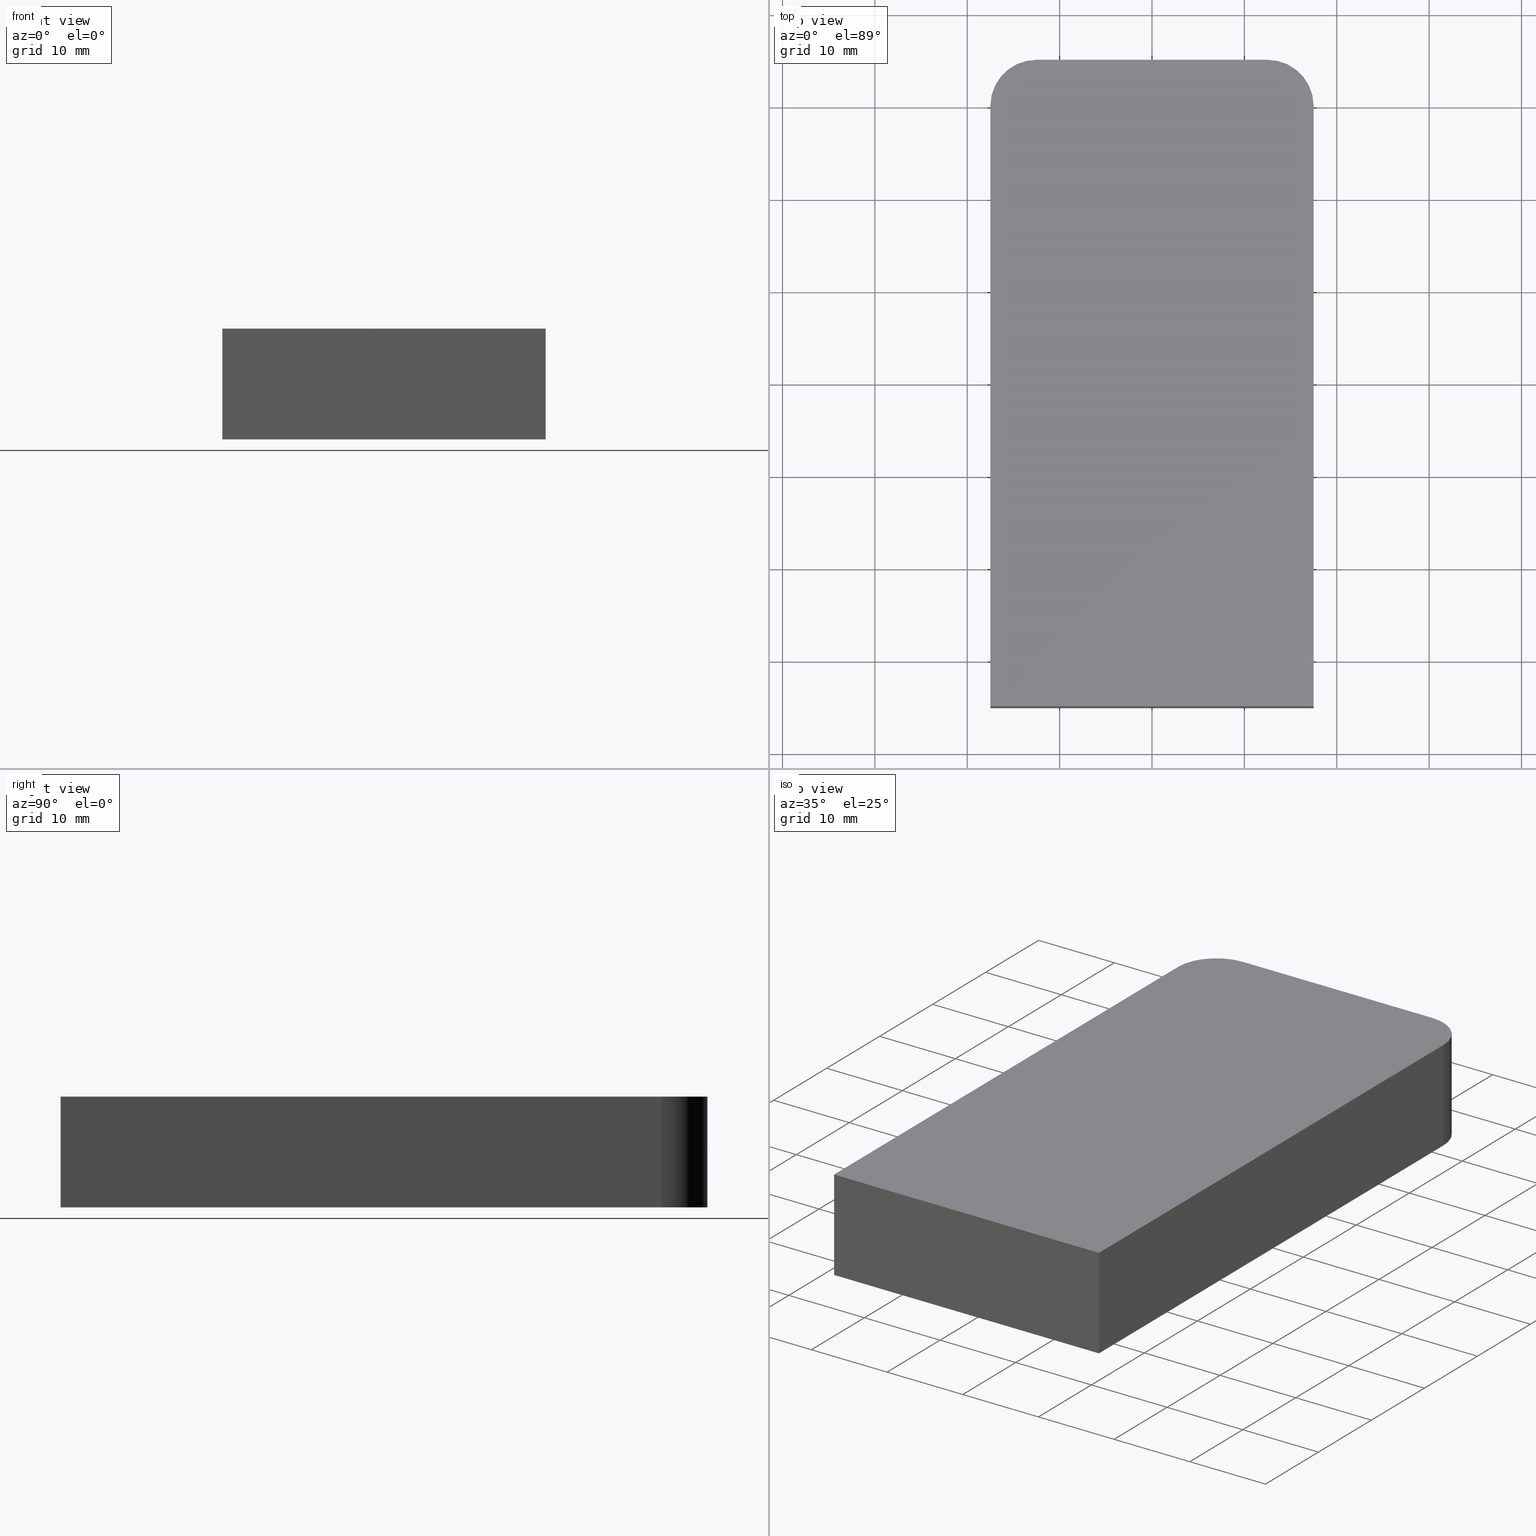
[diagram: canonical four-view strip — front | top / right | iso, engineering-drawing reading convention]
A machine part, canonical four-view strip (front | top / right | iso — engineering-drawing reading convention). The complete STEP part file that produces these views, byte-faithful:
ISO-10303-21;
HEADER;
/* Generated by software containing ST-Developer
 * from STEP Tools, Inc. (www.steptools.com) 
 */

FILE_DESCRIPTION(
/* description */ (''),
/* implementation_level */ '2;1');

FILE_NAME(
/* name */ 
'H:\\Eigene Dateien\\CAD Workspace Vault\\CAD\\E_3_Nocken\\E_3_01_Aufs
chwei\X\DFnocke\\01_Rund\\E_3_01_01_03_00_WKZ-0221.stp',
/* time_stamp */ '2024-05-16T11:03:11+02:00',
/* author */ ('dfischer'),
/* organization */ (''),
/* preprocessor_version */ 'ST-DEVELOPER v18.1',
/* originating_system */ 'Autodesk Inventor 2021',
/* authorisation */ '');

FILE_SCHEMA (('AUTOMOTIVE_DESIGN { 1 0 10303 214 3 1 1 }'));
ENDSEC;

DATA;
#10=MECHANICAL_DESIGN_GEOMETRIC_PRESENTATION_REPRESENTATION('',(#14,#15),
#260);
#11=SHAPE_REPRESENTATION_RELATIONSHIP('SRR','None',#267,#12);
#12=ADVANCED_BREP_SHAPE_REPRESENTATION('',(#13),#259);
#13=MANIFOLD_SOLID_BREP('Volumenk\X\F6rper1',#146);
#14=STYLED_ITEM('',(#277),#144);
#15=STYLED_ITEM('',(#276),#13);
#16=CYLINDRICAL_SURFACE('',#170,5.);
#17=CYLINDRICAL_SURFACE('',#173,5.);
#18=FACE_OUTER_BOUND('',#26,.T.);
#19=FACE_OUTER_BOUND('',#27,.T.);
#20=FACE_OUTER_BOUND('',#28,.T.);
#21=FACE_OUTER_BOUND('',#29,.T.);
#22=FACE_OUTER_BOUND('',#30,.T.);
#23=FACE_OUTER_BOUND('',#31,.T.);
#24=FACE_OUTER_BOUND('',#32,.T.);
#25=FACE_OUTER_BOUND('',#33,.T.);
#26=EDGE_LOOP('',(#96,#97,#98,#99,#100,#101));
#27=EDGE_LOOP('',(#102,#103,#104,#105));
#28=EDGE_LOOP('',(#106,#107,#108,#109));
#29=EDGE_LOOP('',(#110,#111,#112,#113));
#30=EDGE_LOOP('',(#114,#115,#116,#117));
#31=EDGE_LOOP('',(#118,#119,#120,#121));
#32=EDGE_LOOP('',(#122,#123,#124,#125));
#33=EDGE_LOOP('',(#126,#127,#128,#129,#130,#131));
#34=CIRCLE('',#167,5.);
#35=CIRCLE('',#168,5.);
#36=CIRCLE('',#171,5.);
#37=CIRCLE('',#174,5.);
#38=LINE('',#222,#52);
#39=LINE('',#224,#53);
#40=LINE('',#226,#54);
#41=LINE('',#230,#55);
#42=LINE('',#235,#56);
#43=LINE('',#236,#57);
#44=LINE('',#237,#58);
#45=LINE('',#241,#59);
#46=LINE('',#244,#60);
#47=LINE('',#245,#61);
#48=LINE('',#249,#62);
#49=LINE('',#252,#63);
#50=LINE('',#253,#64);
#51=LINE('',#255,#65);
#52=VECTOR('',#182,10.);
#53=VECTOR('',#183,10.);
#54=VECTOR('',#184,10.);
#55=VECTOR('',#187,10.);
#56=VECTOR('',#192,10.);
#57=VECTOR('',#193,10.);
#58=VECTOR('',#194,10.);
#59=VECTOR('',#199,10.);
#60=VECTOR('',#202,10.);
#61=VECTOR('',#203,10.);
#62=VECTOR('',#208,10.);
#63=VECTOR('',#211,10.);
#64=VECTOR('',#212,10.);
#65=VECTOR('',#215,10.);
#66=VERTEX_POINT('',#220);
#67=VERTEX_POINT('',#221);
#68=VERTEX_POINT('',#223);
#69=VERTEX_POINT('',#225);
#70=VERTEX_POINT('',#227);
#71=VERTEX_POINT('',#229);
#72=VERTEX_POINT('',#233);
#73=VERTEX_POINT('',#234);
#74=VERTEX_POINT('',#239);
#75=VERTEX_POINT('',#243);
#76=VERTEX_POINT('',#247);
#77=VERTEX_POINT('',#251);
#78=EDGE_CURVE('',#66,#67,#38,.T.);
#79=EDGE_CURVE('',#68,#66,#39,.T.);
#80=EDGE_CURVE('',#69,#68,#40,.T.);
#81=EDGE_CURVE('',#70,#69,#34,.T.);
#82=EDGE_CURVE('',#71,#70,#41,.T.);
#83=EDGE_CURVE('',#67,#71,#35,.T.);
#84=EDGE_CURVE('',#72,#73,#42,.T.);
#85=EDGE_CURVE('',#69,#73,#43,.T.);
#86=EDGE_CURVE('',#72,#68,#44,.T.);
#87=EDGE_CURVE('',#73,#74,#36,.T.);
#88=EDGE_CURVE('',#70,#74,#45,.T.);
#89=EDGE_CURVE('',#74,#75,#46,.T.);
#90=EDGE_CURVE('',#71,#75,#47,.T.);
#91=EDGE_CURVE('',#75,#76,#37,.T.);
#92=EDGE_CURVE('',#67,#76,#48,.T.);
#93=EDGE_CURVE('',#76,#77,#49,.T.);
#94=EDGE_CURVE('',#66,#77,#50,.T.);
#95=EDGE_CURVE('',#77,#72,#51,.T.);
#96=ORIENTED_EDGE('',*,*,#78,.F.);
#97=ORIENTED_EDGE('',*,*,#79,.F.);
#98=ORIENTED_EDGE('',*,*,#80,.F.);
#99=ORIENTED_EDGE('',*,*,#81,.F.);
#100=ORIENTED_EDGE('',*,*,#82,.F.);
#101=ORIENTED_EDGE('',*,*,#83,.F.);
#102=ORIENTED_EDGE('',*,*,#84,.T.);
#103=ORIENTED_EDGE('',*,*,#85,.F.);
#104=ORIENTED_EDGE('',*,*,#80,.T.);
#105=ORIENTED_EDGE('',*,*,#86,.F.);
#106=ORIENTED_EDGE('',*,*,#87,.T.);
#107=ORIENTED_EDGE('',*,*,#88,.F.);
#108=ORIENTED_EDGE('',*,*,#81,.T.);
#109=ORIENTED_EDGE('',*,*,#85,.T.);
#110=ORIENTED_EDGE('',*,*,#89,.T.);
#111=ORIENTED_EDGE('',*,*,#90,.F.);
#112=ORIENTED_EDGE('',*,*,#82,.T.);
#113=ORIENTED_EDGE('',*,*,#88,.T.);
#114=ORIENTED_EDGE('',*,*,#91,.T.);
#115=ORIENTED_EDGE('',*,*,#92,.F.);
#116=ORIENTED_EDGE('',*,*,#83,.T.);
#117=ORIENTED_EDGE('',*,*,#90,.T.);
#118=ORIENTED_EDGE('',*,*,#93,.T.);
#119=ORIENTED_EDGE('',*,*,#94,.F.);
#120=ORIENTED_EDGE('',*,*,#78,.T.);
#121=ORIENTED_EDGE('',*,*,#92,.T.);
#122=ORIENTED_EDGE('',*,*,#95,.T.);
#123=ORIENTED_EDGE('',*,*,#86,.T.);
#124=ORIENTED_EDGE('',*,*,#79,.T.);
#125=ORIENTED_EDGE('',*,*,#94,.T.);
#126=ORIENTED_EDGE('',*,*,#84,.F.);
#127=ORIENTED_EDGE('',*,*,#95,.F.);
#128=ORIENTED_EDGE('',*,*,#93,.F.);
#129=ORIENTED_EDGE('',*,*,#91,.F.);
#130=ORIENTED_EDGE('',*,*,#89,.F.);
#131=ORIENTED_EDGE('',*,*,#87,.F.);
#132=PLANE('',#166);
#133=PLANE('',#169);
#134=PLANE('',#172);
#135=PLANE('',#175);
#136=PLANE('',#176);
#137=PLANE('',#177);
#138=ADVANCED_FACE('',(#18),#132,.F.);
#139=ADVANCED_FACE('',(#19),#133,.T.);
#140=ADVANCED_FACE('',(#20),#16,.T.);
#141=ADVANCED_FACE('',(#21),#134,.T.);
#142=ADVANCED_FACE('',(#22),#17,.T.);
#143=ADVANCED_FACE('',(#23),#135,.T.);
#144=ADVANCED_FACE('',(#24),#136,.T.);
#145=ADVANCED_FACE('',(#25),#137,.T.);
#146=CLOSED_SHELL('',(#138,#139,#140,#141,#142,#143,#144,#145));
#147=DERIVED_UNIT_ELEMENT(#149,1.);
#148=DERIVED_UNIT_ELEMENT(#262,3.);
#149=(
MASS_UNIT()
NAMED_UNIT(*)
SI_UNIT($,.GRAM.)
);
#150=DERIVED_UNIT((#147,#148));
#151=MEASURE_REPRESENTATION_ITEM('density measure',
POSITIVE_RATIO_MEASURE(8.03),#150);
#152=PROPERTY_DEFINITION_REPRESENTATION(#157,#154);
#153=PROPERTY_DEFINITION_REPRESENTATION(#158,#155);
#154=REPRESENTATION('material name',(#156),#259);
#155=REPRESENTATION('density',(#151),#259);
#156=DESCRIPTIVE_REPRESENTATION_ITEM('1.4301','1.4301');
#157=PROPERTY_DEFINITION('material property','material name',#269);
#158=PROPERTY_DEFINITION('material property','density of part',#269);
#159=DATE_TIME_ROLE('creation_date');
#160=APPLIED_DATE_AND_TIME_ASSIGNMENT(#161,#159,(#269));
#161=DATE_AND_TIME(#162,#163);
#162=CALENDAR_DATE(2011,21,10);
#163=LOCAL_TIME(0,0,0.,#164);
#164=COORDINATED_UNIVERSAL_TIME_OFFSET(0,0,.BEHIND.);
#165=AXIS2_PLACEMENT_3D('placement',#218,#178,#179);
#166=AXIS2_PLACEMENT_3D('',#219,#180,#181);
#167=AXIS2_PLACEMENT_3D('',#228,#185,#186);
#168=AXIS2_PLACEMENT_3D('',#231,#188,#189);
#169=AXIS2_PLACEMENT_3D('',#232,#190,#191);
#170=AXIS2_PLACEMENT_3D('',#238,#195,#196);
#171=AXIS2_PLACEMENT_3D('',#240,#197,#198);
#172=AXIS2_PLACEMENT_3D('',#242,#200,#201);
#173=AXIS2_PLACEMENT_3D('',#246,#204,#205);
#174=AXIS2_PLACEMENT_3D('',#248,#206,#207);
#175=AXIS2_PLACEMENT_3D('',#250,#209,#210);
#176=AXIS2_PLACEMENT_3D('',#254,#213,#214);
#177=AXIS2_PLACEMENT_3D('',#256,#216,#217);
#178=DIRECTION('axis',(0.,0.,1.));
#179=DIRECTION('refdir',(1.,0.,0.));
#180=DIRECTION('center_axis',(0.,0.,1.));
#181=DIRECTION('ref_axis',(1.,0.,0.));
#182=DIRECTION('',(-1.70803542250024E-16,1.,0.));
#183=DIRECTION('',(1.,0.,0.));
#184=DIRECTION('',(-3.41607084500048E-17,-1.,0.));
#185=DIRECTION('center_axis',(0.,0.,1.));
#186=DIRECTION('ref_axis',(8.88178419700126E-16,1.,0.));
#187=DIRECTION('',(-1.,-1.77635683940025E-16,0.));
#188=DIRECTION('center_axis',(0.,0.,1.));
#189=DIRECTION('ref_axis',(1.,0.,0.));
#190=DIRECTION('center_axis',(-1.,3.41607084500048E-17,0.));
#191=DIRECTION('ref_axis',(0.,0.,1.));
#192=DIRECTION('',(3.41607084500048E-17,1.,0.));
#193=DIRECTION('',(0.,0.,1.));
#194=DIRECTION('',(0.,0.,-1.));
#195=DIRECTION('center_axis',(0.,0.,1.));
#196=DIRECTION('ref_axis',(8.88178419700126E-16,1.,0.));
#197=DIRECTION('center_axis',(0.,0.,-1.));
#198=DIRECTION('ref_axis',(8.88178419700126E-16,1.,0.));
#199=DIRECTION('',(0.,0.,1.));
#200=DIRECTION('center_axis',(-1.77635683940025E-16,1.,0.));
#201=DIRECTION('ref_axis',(0.,0.,1.));
#202=DIRECTION('',(1.,1.77635683940025E-16,0.));
#203=DIRECTION('',(0.,0.,1.));
#204=DIRECTION('center_axis',(0.,0.,1.));
#205=DIRECTION('ref_axis',(1.,0.,0.));
#206=DIRECTION('center_axis',(0.,0.,-1.));
#207=DIRECTION('ref_axis',(1.,0.,0.));
#208=DIRECTION('',(0.,0.,1.));
#209=DIRECTION('center_axis',(1.,1.70803542250024E-16,0.));
#210=DIRECTION('ref_axis',(0.,0.,-1.));
#211=DIRECTION('',(1.70803542250024E-16,-1.,0.));
#212=DIRECTION('',(0.,0.,1.));
#213=DIRECTION('center_axis',(0.,-1.,0.));
#214=DIRECTION('ref_axis',(0.,0.,-1.));
#215=DIRECTION('',(-1.,0.,0.));
#216=DIRECTION('center_axis',(0.,0.,1.));
#217=DIRECTION('ref_axis',(1.,0.,0.));
#218=CARTESIAN_POINT('',(0.,0.,0.));
#219=CARTESIAN_POINT('Origin',(0.,-0.75266928424039,-6.));
#220=CARTESIAN_POINT('',(17.5,-35.,-6.));
#221=CARTESIAN_POINT('',(17.5,30.,-6.));
#222=CARTESIAN_POINT('',(17.5,-35.,-6.));
#223=CARTESIAN_POINT('',(-17.5,-35.,-6.));
#224=CARTESIAN_POINT('',(-17.5,-35.,-6.));
#225=CARTESIAN_POINT('',(-17.5,30.,-6.));
#226=CARTESIAN_POINT('',(-17.5,30.,-6.));
#227=CARTESIAN_POINT('',(-12.5,35.,-6.));
#228=CARTESIAN_POINT('Origin',(-12.5,30.,-6.));
#229=CARTESIAN_POINT('',(12.5,35.,-6.));
#230=CARTESIAN_POINT('',(12.5,35.,-6.));
#231=CARTESIAN_POINT('Origin',(12.5,30.,-6.));
#232=CARTESIAN_POINT('Origin',(-17.5,-35.,0.));
#233=CARTESIAN_POINT('',(-17.5,-35.,6.));
#234=CARTESIAN_POINT('',(-17.5,30.,6.));
#235=CARTESIAN_POINT('',(-17.5,30.,6.));
#236=CARTESIAN_POINT('',(-17.5,30.,0.));
#237=CARTESIAN_POINT('',(-17.5,-35.,0.));
#238=CARTESIAN_POINT('Origin',(-12.5,30.,0.));
#239=CARTESIAN_POINT('',(-12.5,35.,6.));
#240=CARTESIAN_POINT('Origin',(-12.5,30.,6.));
#241=CARTESIAN_POINT('',(-12.5,35.,0.));
#242=CARTESIAN_POINT('Origin',(-12.5,35.,0.));
#243=CARTESIAN_POINT('',(12.5,35.,6.));
#244=CARTESIAN_POINT('',(12.5,35.,6.));
#245=CARTESIAN_POINT('',(12.5,35.,0.));
#246=CARTESIAN_POINT('Origin',(12.5,30.,0.));
#247=CARTESIAN_POINT('',(17.5,30.,6.));
#248=CARTESIAN_POINT('Origin',(12.5,30.,6.));
#249=CARTESIAN_POINT('',(17.5,30.,0.));
#250=CARTESIAN_POINT('Origin',(17.5,30.,0.));
#251=CARTESIAN_POINT('',(17.5,-35.,6.));
#252=CARTESIAN_POINT('',(17.5,-35.,6.));
#253=CARTESIAN_POINT('',(17.5,-35.,0.));
#254=CARTESIAN_POINT('Origin',(17.5,-35.,0.));
#255=CARTESIAN_POINT('',(-17.5,-35.,6.));
#256=CARTESIAN_POINT('Origin',(0.,-0.75266928424039,6.));
#257=UNCERTAINTY_MEASURE_WITH_UNIT(LENGTH_MEASURE(0.01),#261,
'DISTANCE_ACCURACY_VALUE',
'Maximum model space distance between geometric entities at asserted c
onnectivities');
#258=UNCERTAINTY_MEASURE_WITH_UNIT(LENGTH_MEASURE(0.01),#261,
'DISTANCE_ACCURACY_VALUE',
'Maximum model space distance between geometric entities at asserted c
onnectivities');
#259=(
GEOMETRIC_REPRESENTATION_CONTEXT(3)
GLOBAL_UNCERTAINTY_ASSIGNED_CONTEXT((#257))
GLOBAL_UNIT_ASSIGNED_CONTEXT((#261,#263,#264))
REPRESENTATION_CONTEXT('','3D')
);
#260=(
GEOMETRIC_REPRESENTATION_CONTEXT(3)
GLOBAL_UNCERTAINTY_ASSIGNED_CONTEXT((#258))
GLOBAL_UNIT_ASSIGNED_CONTEXT((#261,#263,#264))
REPRESENTATION_CONTEXT('','3D')
);
#261=(
LENGTH_UNIT()
NAMED_UNIT(*)
SI_UNIT(.MILLI.,.METRE.)
);
#262=(
LENGTH_UNIT()
NAMED_UNIT(*)
SI_UNIT(.CENTI.,.METRE.)
);
#263=(
NAMED_UNIT(*)
PLANE_ANGLE_UNIT()
SI_UNIT($,.RADIAN.)
);
#264=(
NAMED_UNIT(*)
SI_UNIT($,.STERADIAN.)
SOLID_ANGLE_UNIT()
);
#265=SHAPE_DEFINITION_REPRESENTATION(#266,#267);
#266=PRODUCT_DEFINITION_SHAPE('',$,#269);
#267=SHAPE_REPRESENTATION('',(#165),#259);
#268=PRODUCT_DEFINITION_CONTEXT('part definition',#273,'design');
#269=PRODUCT_DEFINITION('WKZ-0221','E_3_01_01_03_00_WKZ-0221',#270,#268);
#270=PRODUCT_DEFINITION_FORMATION('',$,#275);
#271=PRODUCT_RELATED_PRODUCT_CATEGORY('E_3_01_01_03_00_WKZ-0221',
'E_3_01_01_03_00_WKZ-0221',(#275));
#272=APPLICATION_PROTOCOL_DEFINITION('international standard',
'automotive_design',2009,#273);
#273=APPLICATION_CONTEXT(
'Core Data for Automotive Mechanical Design Process');
#274=PRODUCT_CONTEXT('part definition',#273,'mechanical');
#275=PRODUCT('WKZ-0221','E_3_01_01_03_00_WKZ-0221',$,(#274));
#276=PRESENTATION_STYLE_ASSIGNMENT((#278));
#277=PRESENTATION_STYLE_ASSIGNMENT((#279));
#278=SURFACE_STYLE_USAGE(.BOTH.,#282);
#279=SURFACE_STYLE_USAGE(.BOTH.,#283);
#280=SURFACE_STYLE_RENDERING_WITH_PROPERTIES($,#290,(#281));
#281=SURFACE_STYLE_TRANSPARENT(0.);
#282=SURFACE_SIDE_STYLE('',(#284,#280));
#283=SURFACE_SIDE_STYLE('',(#285));
#284=SURFACE_STYLE_FILL_AREA(#286);
#285=SURFACE_STYLE_FILL_AREA(#287);
#286=FILL_AREA_STYLE('',(#288));
#287=FILL_AREA_STYLE('',(#289));
#288=FILL_AREA_STYLE_COLOUR('',#290);
#289=FILL_AREA_STYLE_COLOUR('',#291);
#290=COLOUR_RGB('',0.92156862745098,0.92156862745098,0.92156862745098);
#291=COLOUR_RGB('',0.16078431372549,0.16078431372549,0.16078431372549);
ENDSEC;
END-ISO-10303-21;
